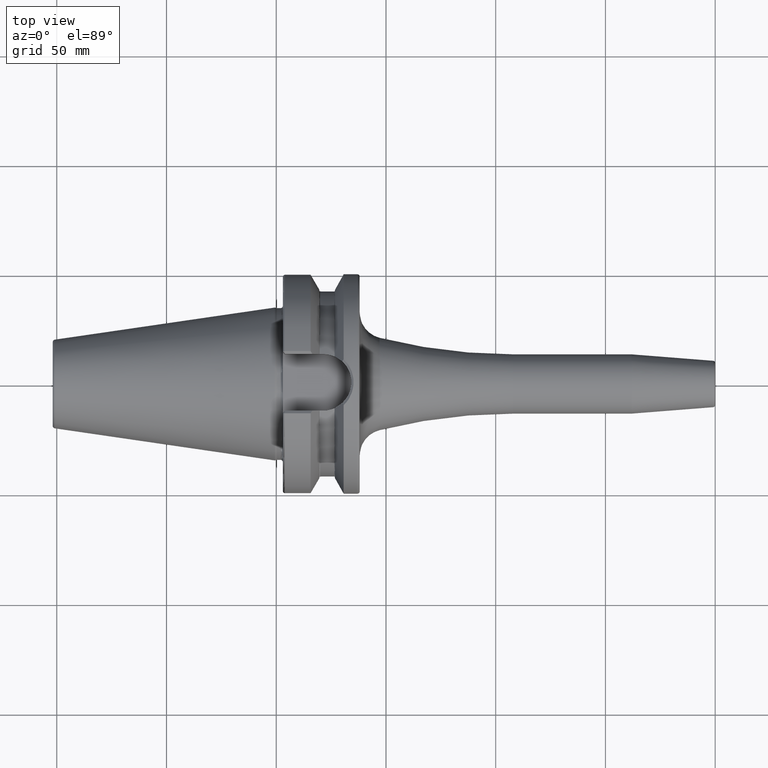
[diagram: clean part render]
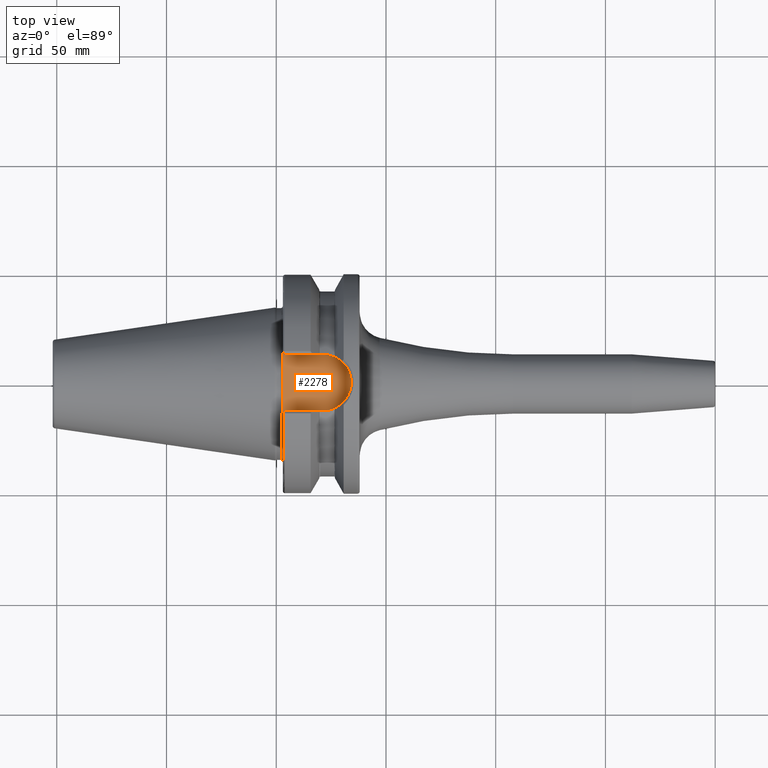
[diagram: same view with one face highlighted and labeled with its STEP entity id]
A machine part, top view. The second image highlights one B-rep face of the part: STEP entity #2278.
In plain terms, the highlighted planar face has unit normal (0, 0, 1).
Its self-contained STEP definition (entity closure, byte-faithful):
#675=DIRECTION('',(1.E0,0.E0,0.E0));
#676=VECTOR('',#675,1.73475E1);
#677=CARTESIAN_POINT('',(4.E0,-1.29025E1,3.52E1));
#678=LINE('',#677,#676);
#679=DIRECTION('',(0.E0,1.E0,0.E0));
#680=VECTOR('',#679,8.750740591798E0);
#681=CARTESIAN_POINT('',(3.E0,-1.39025E1,3.52E1));
#682=LINE('',#681,#680);
#683=DIRECTION('',(0.E0,1.E0,0.E0));
#684=VECTOR('',#683,8.750740591798E0);
#685=CARTESIAN_POINT('',(3.E0,5.151759408202E0,3.52E1));
#686=LINE('',#685,#684);
#687=DIRECTION('',(-1.E0,0.E0,0.E0));
#688=VECTOR('',#687,1.73475E1);
#689=CARTESIAN_POINT('',(2.13475E1,1.29025E1,3.52E1));
#690=LINE('',#689,#688);
#691=CARTESIAN_POINT('',(2.13475E1,0.E0,3.52E1));
#692=DIRECTION('',(0.E0,0.E0,1.E0));
#693=DIRECTION('',(0.E0,-1.E0,0.E0));
#694=AXIS2_PLACEMENT_3D('',#691,#692,#693);
#700=DIRECTION('',(7.071067811865E-1,7.071067811865E-1,0.E0));
#701=VECTOR('',#700,1.414213562373E0);
#702=CARTESIAN_POINT('',(3.E0,-1.39025E1,3.52E1));
#703=LINE('',#702,#701);
#709=CARTESIAN_POINT('',(3.E0,-5.151759408202E0,3.52E1));
#710=CARTESIAN_POINT('',(3.E0,-4.661054534839E0,3.52E1));
#711=CARTESIAN_POINT('',(2.985185415825E0,-3.679726334521E0,3.52E1));
#712=CARTESIAN_POINT('',(2.950323079566E0,-2.207949548308E0,3.52E1));
#713=CARTESIAN_POINT('',(2.926055980582E0,-7.360772184078E-1,3.52E1));
#714=CARTESIAN_POINT('',(2.926055295138E0,7.360096394602E-1,3.52E1));
#715=CARTESIAN_POINT('',(2.950321957583E0,2.207902450145E0,3.52E1));
#716=CARTESIAN_POINT('',(2.985185074234E0,3.679708044881E0,3.52E1));
#717=CARTESIAN_POINT('',(3.E0,4.661048861273E0,3.52E1));
#718=CARTESIAN_POINT('',(3.E0,5.151759408202E0,3.52E1));
#725=DIRECTION('',(-7.071067811865E-1,7.071067811865E-1,0.E0));
#726=VECTOR('',#725,1.414213562373E0);
#727=CARTESIAN_POINT('',(4.E0,1.29025E1,3.52E1));
#728=LINE('',#727,#726);
#1326=CARTESIAN_POINT('',(2.13475E1,-1.29025E1,3.52E1));
#1327=CARTESIAN_POINT('',(2.13475E1,1.29025E1,3.52E1));
#1328=VERTEX_POINT('',#1326);
#1329=VERTEX_POINT('',#1327);
#1330=CARTESIAN_POINT('',(3.E0,5.151759408202E0,3.52E1));
#1331=VERTEX_POINT('',#1330);
#1332=CARTESIAN_POINT('',(3.E0,-5.151759408202E0,3.52E1));
#1333=VERTEX_POINT('',#1332);
#1367=CARTESIAN_POINT('',(4.E0,-1.29025E1,3.52E1));
#1369=VERTEX_POINT('',#1367);
#1371=CARTESIAN_POINT('',(3.E0,-1.39025E1,3.52E1));
#1373=VERTEX_POINT('',#1371);
#1380=CARTESIAN_POINT('',(3.E0,1.39025E1,3.52E1));
#1381=VERTEX_POINT('',#1380);
#1382=CARTESIAN_POINT('',(4.E0,1.29025E1,3.52E1));
#1384=VERTEX_POINT('',#1382);
#2260=CARTESIAN_POINT('',(0.E0,0.E0,3.52E1));
#2261=DIRECTION('',(0.E0,0.E0,1.E0));
#2262=DIRECTION('',(1.E0,0.E0,0.E0));
#2263=AXIS2_PLACEMENT_3D('',#2260,#2261,#2262);
#2264=PLANE('',#2263);
#2265=ORIENTED_EDGE('',*,*,#2014,.F.);
#2267=ORIENTED_EDGE('',*,*,#2266,.F.);
#2268=ORIENTED_EDGE('',*,*,#1625,.T.);
#2270=ORIENTED_EDGE('',*,*,#2269,.T.);
#2271=ORIENTED_EDGE('',*,*,#1603,.T.);
#2273=ORIENTED_EDGE('',*,*,#2272,.F.);
#2274=ORIENTED_EDGE('',*,*,#2251,.F.);
#2275=ORIENTED_EDGE('',*,*,#1985,.F.);
#2276=EDGE_LOOP('',(#2265,#2267,#2268,#2270,#2271,#2273,#2274,#2275));
#2277=FACE_OUTER_BOUND('',#2276,.F.);
#2278=ADVANCED_FACE('',(#2277),#2264,.T.);
#695=CIRCLE('',#694,1.29025E1);
#719=B_SPLINE_CURVE_WITH_KNOTS('',3,(#709,#710,#711,#712,#713,#714,#715,#716,
#717,#718),.UNSPECIFIED.,.F.,.F.,(4,1,1,1,1,1,1,4),(0.E0,1.428571428571E-1,
2.857142857143E-1,4.285714285714E-1,5.714285714286E-1,7.142857142857E-1,
8.571428571429E-1,1.E0),.UNSPECIFIED.);
#1603=EDGE_CURVE('',#1331,#1381,#686,.T.);
#1625=EDGE_CURVE('',#1373,#1333,#682,.T.);
#1985=EDGE_CURVE('',#1328,#1329,#695,.T.);
#2014=EDGE_CURVE('',#1369,#1328,#678,.T.);
#2251=EDGE_CURVE('',#1329,#1384,#690,.T.);
#2266=EDGE_CURVE('',#1373,#1369,#703,.T.);
#2269=EDGE_CURVE('',#1333,#1331,#719,.T.);
#2272=EDGE_CURVE('',#1384,#1381,#728,.T.);